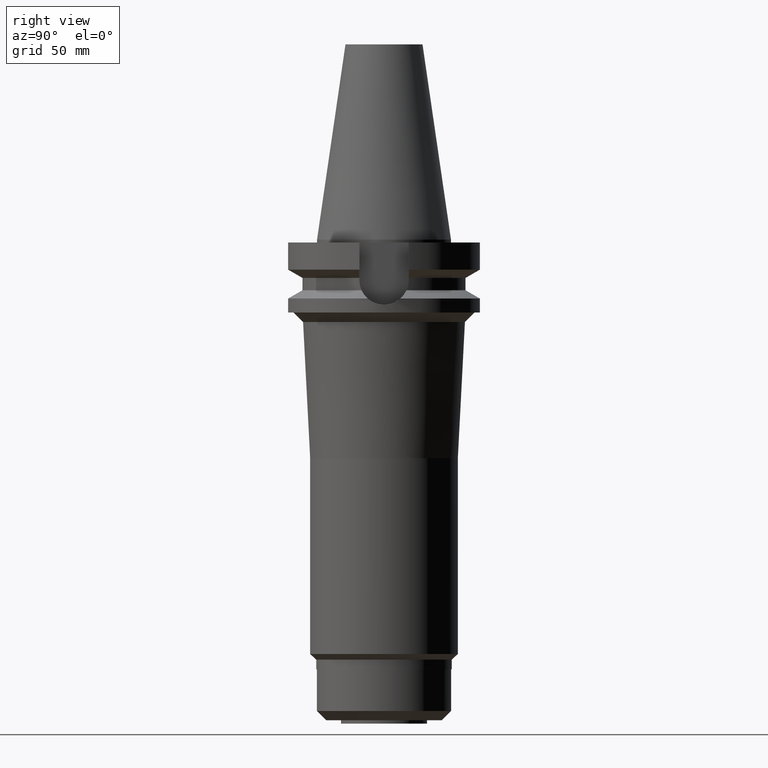
[diagram: clean part render]
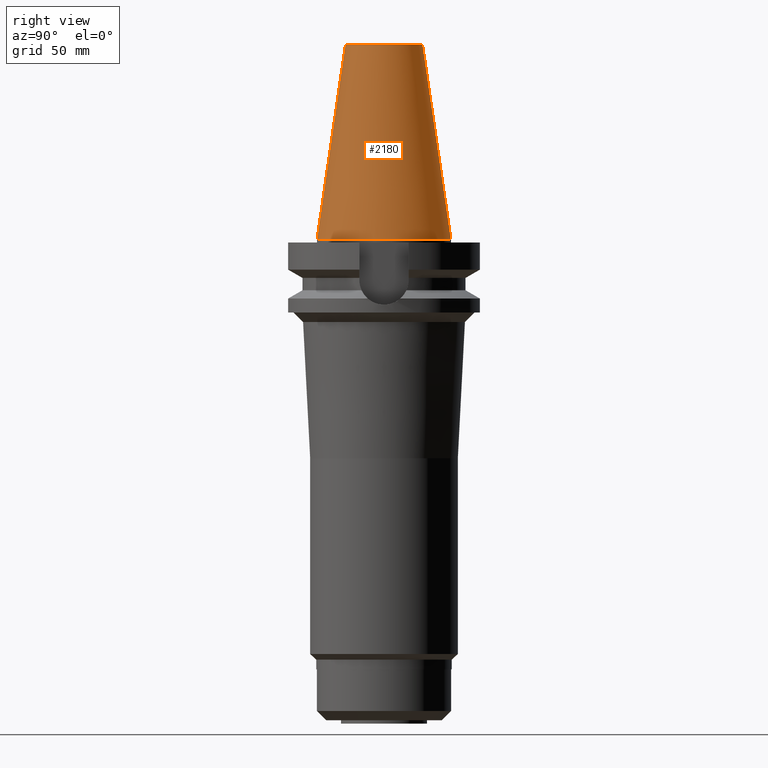
[diagram: same view with one face highlighted and labeled with its STEP entity id]
A machine part, right view. The second image highlights one B-rep face of the part: STEP entity #2180.
In plain terms, the highlighted conical surface has half-angle 8.297 deg.
Its self-contained STEP definition (entity closure, byte-faithful):
#1063=DIRECTION('',(0.E0,-1.443043893539E-1,-9.895333461856E-1));
#1064=VECTOR('',#1063,1.028767755957E2);
#1065=CARTESIAN_POINT('',(0.E0,-2.007942971896E1,1.018E2));
#1066=LINE('',#1065,#1064);
#1078=DIRECTION('',(0.E0,1.443043893539E-1,-9.895333461856E-1));
#1079=VECTOR('',#1078,1.028767755957E2);
#1080=CARTESIAN_POINT('',(0.E0,2.007942971896E1,1.018E2));
#1081=LINE('',#1080,#1079);
#1085=CARTESIAN_POINT('',(0.E0,1.847992019913E-14,3.979039320257E-13));
#1086=DIRECTION('',(0.E0,0.E0,-1.E0));
#1087=DIRECTION('',(0.E0,1.E0,0.E0));
#1088=AXIS2_PLACEMENT_3D('',#1085,#1086,#1087);
#1101=CARTESIAN_POINT('',(0.E0,1.847992019913E-14,1.018E2));
#1102=DIRECTION('',(0.E0,0.E0,-1.E0));
#1103=DIRECTION('',(0.E0,1.E0,0.E0));
#1104=AXIS2_PLACEMENT_3D('',#1101,#1102,#1103);
#1282=CARTESIAN_POINT('',(0.E0,3.4925E1,5.542233338929E-13));
#1283=VERTEX_POINT('',#1282);
#1284=CARTESIAN_POINT('',(0.E0,-3.4925E1,5.542233338929E-13));
#1285=VERTEX_POINT('',#1284);
#1286=CARTESIAN_POINT('',(0.E0,2.007942971896E1,1.018E2));
#1287=VERTEX_POINT('',#1286);
#1288=CARTESIAN_POINT('',(0.E0,-2.007942971896E1,1.018E2));
#1289=VERTEX_POINT('',#1288);
#2168=CARTESIAN_POINT('',(0.E0,1.847992019913E-14,5.09E1));
#2169=DIRECTION('',(0.E0,0.E0,-1.E0));
#2170=DIRECTION('',(0.E0,-1.E0,0.E0));
#2171=AXIS2_PLACEMENT_3D('',#2168,#2169,#2170);
#2172=CONICAL_SURFACE('',#2171,2.750221485948E1,8.297E0);
#2173=ORIENTED_EDGE('',*,*,#2158,.T.);
#2174=ORIENTED_EDGE('',*,*,#2135,.T.);
#2175=ORIENTED_EDGE('',*,*,#2162,.F.);
#2177=ORIENTED_EDGE('',*,*,#2176,.F.);
#2178=EDGE_LOOP('',(#2173,#2174,#2175,#2177));
#2179=FACE_OUTER_BOUND('',#2178,.F.);
#1089=CIRCLE('',#1088,3.4925E1);
#1105=CIRCLE('',#1104,2.007942971896E1);
#2135=EDGE_CURVE('',#1283,#1285,#1089,.T.);
#2158=EDGE_CURVE('',#1287,#1283,#1081,.T.);
#2162=EDGE_CURVE('',#1289,#1285,#1066,.T.);
#2176=EDGE_CURVE('',#1287,#1289,#1105,.T.);
#2180=ADVANCED_FACE('',(#2179),#2172,.T.);